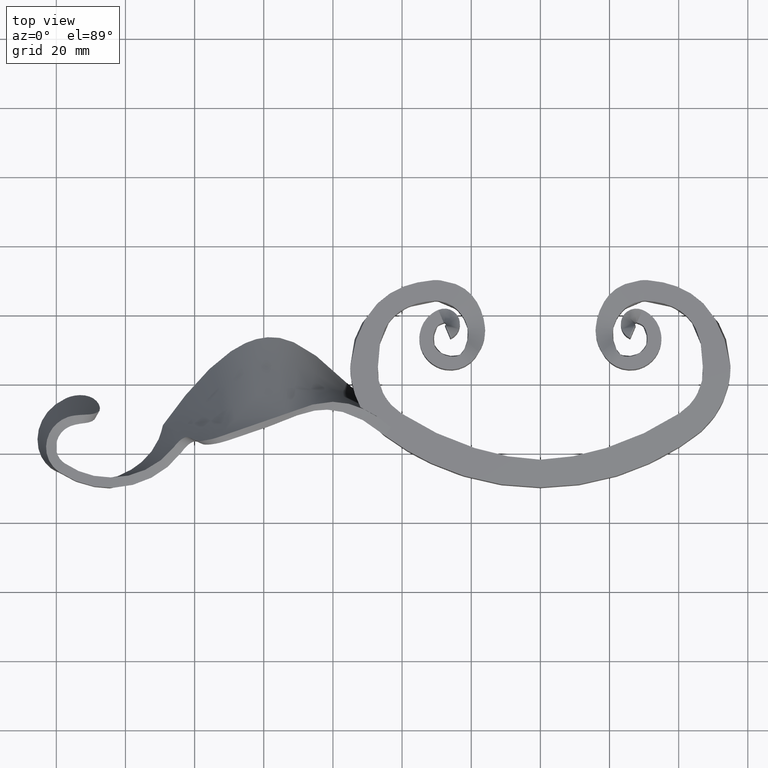
[diagram: clean part render]
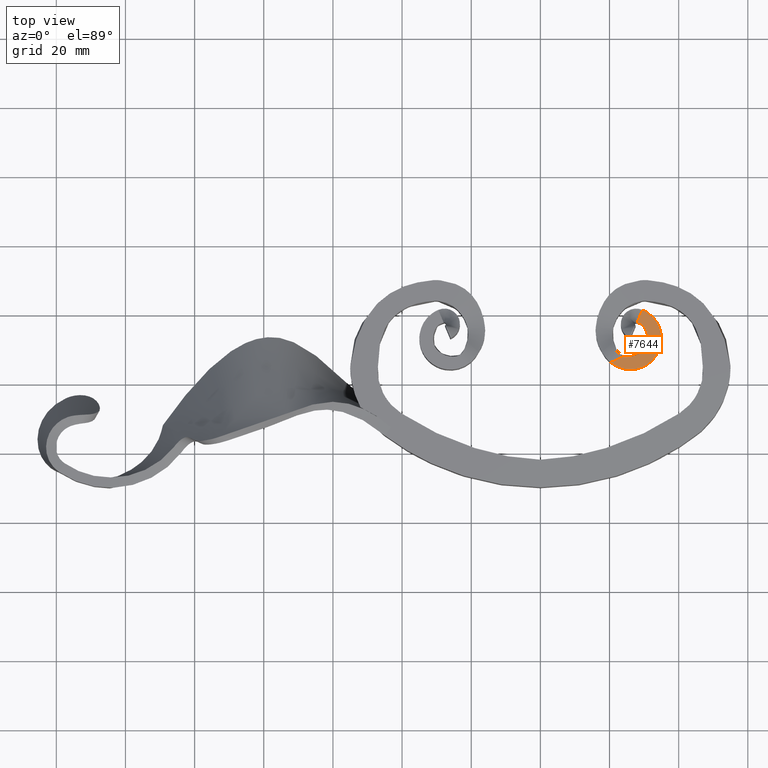
[diagram: same view with one face highlighted and labeled with its STEP entity id]
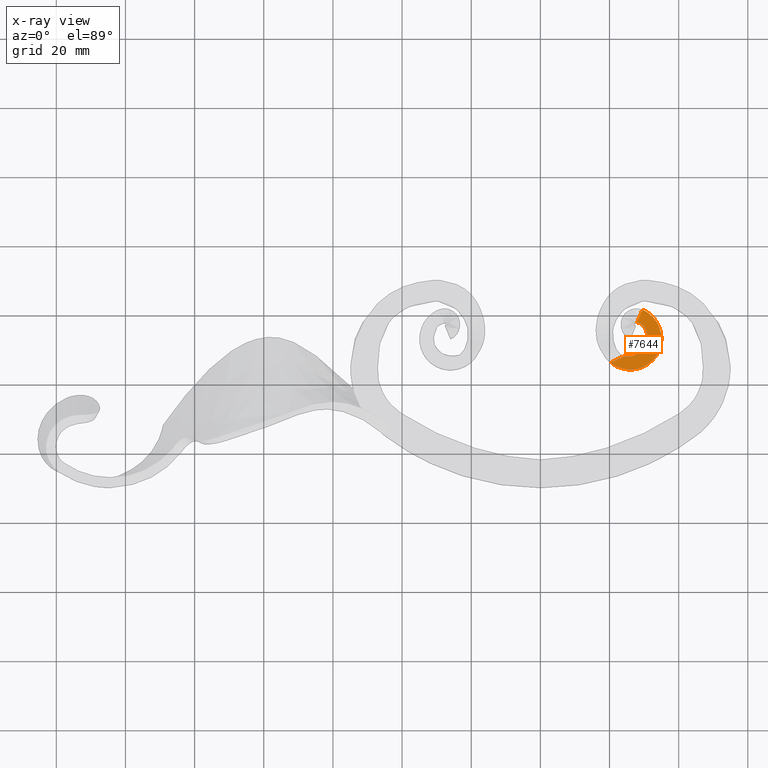
[diagram: x-ray of the same camera — body ghosted, the highlighted face saturated]
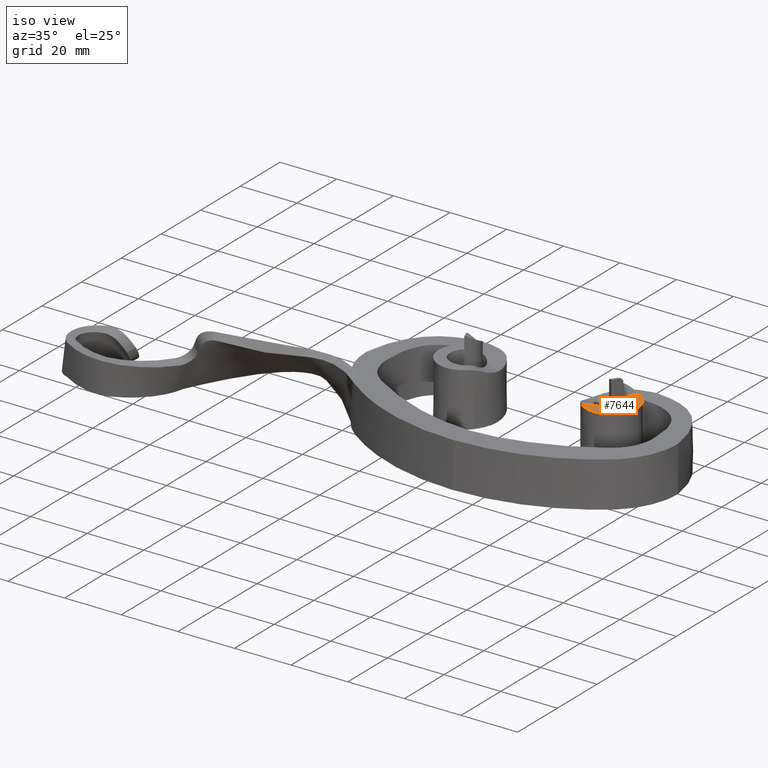
[diagram: same view with one face highlighted and labeled with its STEP entity id]
A machine part, top view. The second image highlights one B-rep face of the part: STEP entity #7644.
The next image is the same camera in x-ray: the body ghosted, the highlighted face saturated — about 0% of this face is hidden behind the body in this view.
A second angle (iso view) of the same face is appended — the face is thin or edge-on in the first view.
In plain terms, the highlighted planar face has unit normal (0, 0, -1).
Its self-contained STEP definition (entity closure, byte-faithful):
#111 = DIRECTION ( 'NONE',  ( 0.8000000000000027089, 0.5999999999999962030, 0.000000000000000000 ) ) ;
#163 = DIRECTION ( 'NONE',  ( 0.000000000000000000, 0.000000000000000000, -1.000000000000000000 ) ) ;
#1000 = VERTEX_POINT ( 'NONE', #9768 ) ;
#1228 = EDGE_LOOP ( 'NONE', ( #1371, #4666, #2370, #1537 ) ) ;
#1300 = CARTESIAN_POINT ( 'NONE',  ( 34.25946423951132402, 8.843206983007620536, 10.99999999999999822 ) ) ;
#1371 = ORIENTED_EDGE ( 'NONE', *, *, #9213, .T. ) ;
#1527 = AXIS2_PLACEMENT_3D ( 'NONE', #10285, #163, #111 ) ;
#1537 = ORIENTED_EDGE ( 'NONE', *, *, #14278, .F. ) ;
#1847 = CARTESIAN_POINT ( 'NONE',  ( 20.29661149748788418, 6.033367698495271547, 11.00000000000000000 ) ) ;
#2319 = CARTESIAN_POINT ( 'NONE',  ( 21.58717420881689364, 6.721216386565580514, 11.00000000000000000 ) ) ;
#2370 = ORIENTED_EDGE ( 'NONE', *, *, #11721, .F. ) ;
#2626 = CARTESIAN_POINT ( 'NONE',  ( 24.39278005244813130, 3.770662303596310938, 11.00000000000000000 ) ) ;
#3339 = CARTESIAN_POINT ( 'NONE',  ( 30.99636596809154199, 13.61868117833641101, 10.99999999999999822 ) ) ;
#3795 = CARTESIAN_POINT ( 'NONE',  ( 20.29661149748788418, 6.033367698495271547, 11.00000000000000000 ) ) ;
#4666 = ORIENTED_EDGE ( 'NONE', *, *, #13217, .F. ) ;
#5024 = PLANE ( 'NONE',  #1527 ) ;
#5170 = CARTESIAN_POINT ( 'NONE',  ( 31.84467490471190487, 20.29414281920287522, 11.00000000000000178 ) ) ;
#5952 = CARTESIAN_POINT ( 'NONE',  ( 20.29661149748788418, 6.033367698495271547, 11.00000000000000000 ) ) ;
#6026 = VECTOR ( 'NONE', #14419, 1000.000000000000227 ) ;
#6317 = CARTESIAN_POINT ( 'NONE',  ( 30.39536798590259536, 5.078883428836729941, 11.00000000000000000 ) ) ;
#7067 = CARTESIAN_POINT ( 'NONE',  ( 25.51823761594019402, 7.670164001846688784, 11.00000000000000000 ) ) ;
#7123 = CARTESIAN_POINT ( 'NONE',  ( 29.64026892058477358, 9.421595619830604562, 11.00000000000000000 ) ) ;
#7644 = ADVANCED_FACE ( 'NONE', ( #11860 ), #5024, .F. ) ;
#8235 = B_SPLINE_CURVE_WITH_KNOTS ( 'NONE', 3,
 ( #3795, #10132, #2626, #12681, #6317, #8850, #1300, #11414, #13779, #11365, #5170, #16244 ),
 .UNSPECIFIED., .F., .F.,
 ( 4, 1, 1, 1, 1, 1, 1, 1, 1, 4 ),
 ( 0.06491379141366943051, 0.2222222222222222099, 0.3333333333333332038, 0.3933235458510605520, 0.4444444444444443088, 0.5555555555555555802, 0.6666666666666665186, 0.6966440338507811081, 0.7777777777777776791, 1.000000000000000000 ),
 .UNSPECIFIED. ) ;
#8500 = CARTESIAN_POINT ( 'NONE',  ( 28.44497837956595632, 8.609805734833971158, 11.00000000000000000 ) ) ;
#8535 = CARTESIAN_POINT ( 'NONE',  ( 29.52316920676388534, 21.28174370169174523, 11.00000000000000000 ) ) ;
#8850 = CARTESIAN_POINT ( 'NONE',  ( 32.41479324200518874, 6.489582292845746281, 11.00000000000000000 ) ) ;
#8855 = VERTEX_POINT ( 'NONE', #8535 ) ;
#9213 = EDGE_CURVE ( 'NONE', #13167, #8855, #8235, .T. ) ;
#9554 = CARTESIAN_POINT ( 'NONE',  ( 24.54344368718537339, 7.801256374047342845, 11.00000000000000000 ) ) ;
#9702 = VERTEX_POINT ( 'NONE', #12553 ) ;
#9768 = CARTESIAN_POINT ( 'NONE',  ( 27.95731622597993393, 17.60096872316207950, 11.00000000000000000 ) ) ;
#10132 = CARTESIAN_POINT ( 'NONE',  ( 21.63241412721516355, 4.935235235245198027, 11.00000000000000000 ) ) ;
#10285 = CARTESIAN_POINT ( 'NONE',  ( 18.79999999999997584, 7.600000000000018296, 11.00000000000000000 ) ) ;
#10813 = CARTESIAN_POINT ( 'NONE',  ( 29.42696231951486752, 17.37574113573457879, 11.00000000000000178 ) ) ;
#10830 = CARTESIAN_POINT ( 'NONE',  ( 29.52316920676388534, 21.28174370169174523, 11.00000000000000000 ) ) ;
#10923 = CARTESIAN_POINT ( 'NONE',  ( 24.27899842503329708, 7.865668624521683583, 11.00000000000000000 ) ) ;
#11365 = CARTESIAN_POINT ( 'NONE',  ( 34.22741881072497705, 17.74674200117013356, 11.00000000000000178 ) ) ;
#11414 = CARTESIAN_POINT ( 'NONE',  ( 35.00947000332063652, 11.61259910995765132, 10.99999999999999822 ) ) ;
#11721 = EDGE_CURVE ( 'NONE', #9702, #1000, #12223, .T. ) ;
#11860 = FACE_OUTER_BOUND ( 'NONE', #1228, .T. ) ;
#12223 = B_SPLINE_CURVE_WITH_KNOTS ( 'NONE', 3,
 ( #10923, #9554, #7067, #16007, #8500, #7123, #12224, #12285, #3339, #14633, #10813, #13492 ),
 .UNSPECIFIED., .F., .F.,
 ( 4, 1, 1, 1, 1, 1, 1, 1, 1, 4 ),
 ( 0.1778451900565372057, 0.2222222222222222099, 0.3333333333333332593, 0.3933235458510605520, 0.4444444444444443088, 0.5555555555555555802, 0.6666666666666665186, 0.6966440338507809971, 0.7777777777777776791, 1.000000000000000000 ),
 .UNSPECIFIED. ) ;
#12224 = CARTESIAN_POINT ( 'NONE',  ( 30.63733038037684508, 10.64071114690243647, 10.99999999999999822 ) ) ;
#12285 = CARTESIAN_POINT ( 'NONE',  ( 31.00743668286099464, 12.17032458897546654, 10.99999999999999822 ) ) ;
#12320 = CARTESIAN_POINT ( 'NONE',  ( 22.90994604827131909, 7.351108673962939655, 11.00000000000000000 ) ) ;
#12553 = CARTESIAN_POINT ( 'NONE',  ( 24.27899842503329708, 7.865668624521683583, 11.00000000000000000 ) ) ;
#12681 = CARTESIAN_POINT ( 'NONE',  ( 28.11336640407603582, 4.086658698443426552, 11.00000000000000000 ) ) ;
#13167 = VERTEX_POINT ( 'NONE', #1847 ) ;
#13217 = EDGE_CURVE ( 'NONE', #1000, #8855, #14442, .T. ) ;
#13492 = CARTESIAN_POINT ( 'NONE',  ( 27.95731622597993393, 17.60096872316207950, 11.00000000000000000 ) ) ;
#13570 = CARTESIAN_POINT ( 'NONE',  ( 24.27899842503329708, 7.865668624521683583, 11.00000000000000000 ) ) ;
#13779 = CARTESIAN_POINT ( 'NONE',  ( 35.00064138199365971, 14.08806735994447479, 10.99999999999999822 ) ) ;
#14278 = EDGE_CURVE ( 'NONE', #13167, #9702, #15946, .T. ) ;
#14419 = DIRECTION ( 'NONE',  ( 0.3914632451959871307, 0.9201937446324151004, 0.000000000000000000 ) ) ;
#14442 = LINE ( 'NONE', #10830, #6026 ) ;
#14633 = CARTESIAN_POINT ( 'NONE',  ( 30.64683110558693357, 15.86905751140550791, 11.00000000000000178 ) ) ;
#15946 = B_SPLINE_CURVE_WITH_KNOTS ( 'NONE', 3,
 ( #5952, #2319, #12320, #13570 ),
 .UNSPECIFIED., .F., .F.,
 ( 4, 4 ),
 ( 3.576224061345498009E-18, 0.004387242854901331549 ),
 .UNSPECIFIED. ) ;
#16007 = CARTESIAN_POINT ( 'NONE',  ( 27.04064237399991200, 7.932193144384889649, 11.00000000000000000 ) ) ;
#16244 = CARTESIAN_POINT ( 'NONE',  ( 29.52316920676388534, 21.28174370169174523, 11.00000000000000000 ) ) ;